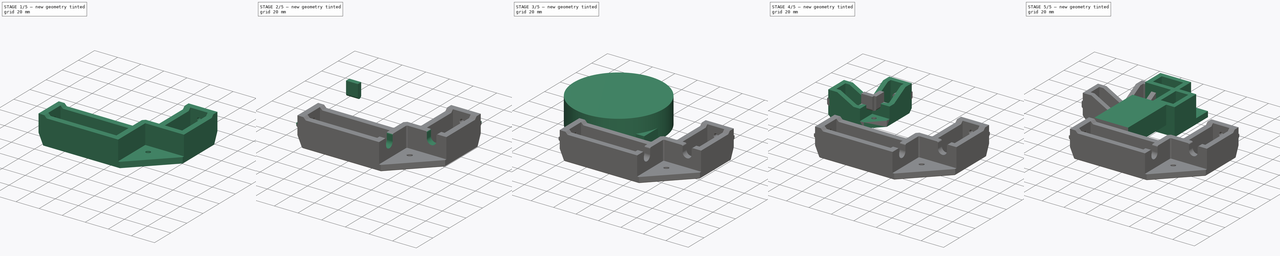
[diagram: build sequence overview — one tinted view per stage of 5, left to right]
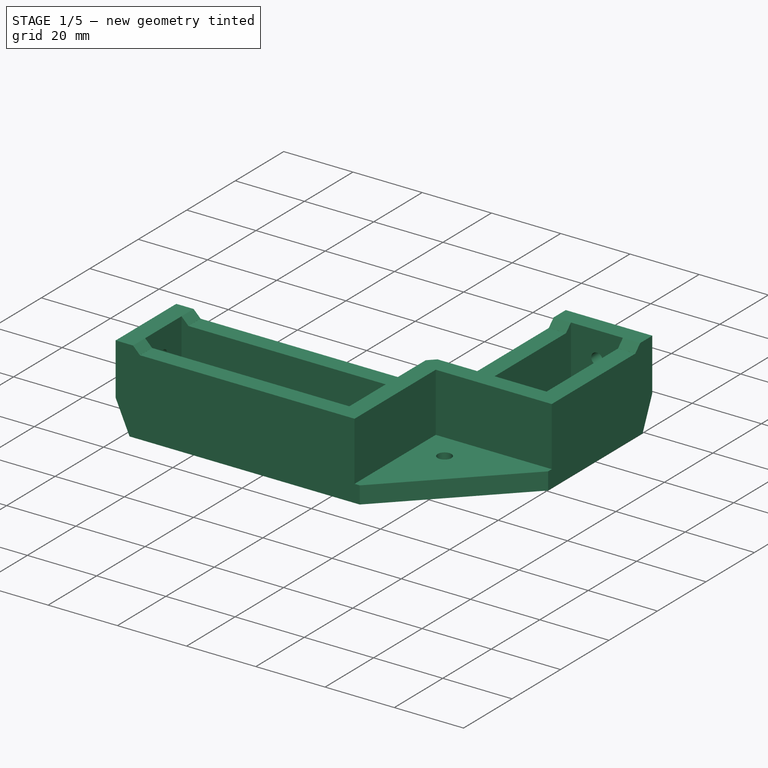
[diagram: stage 1 of 5 — iso view after this stage's code; geometry added in this stage tinted green]
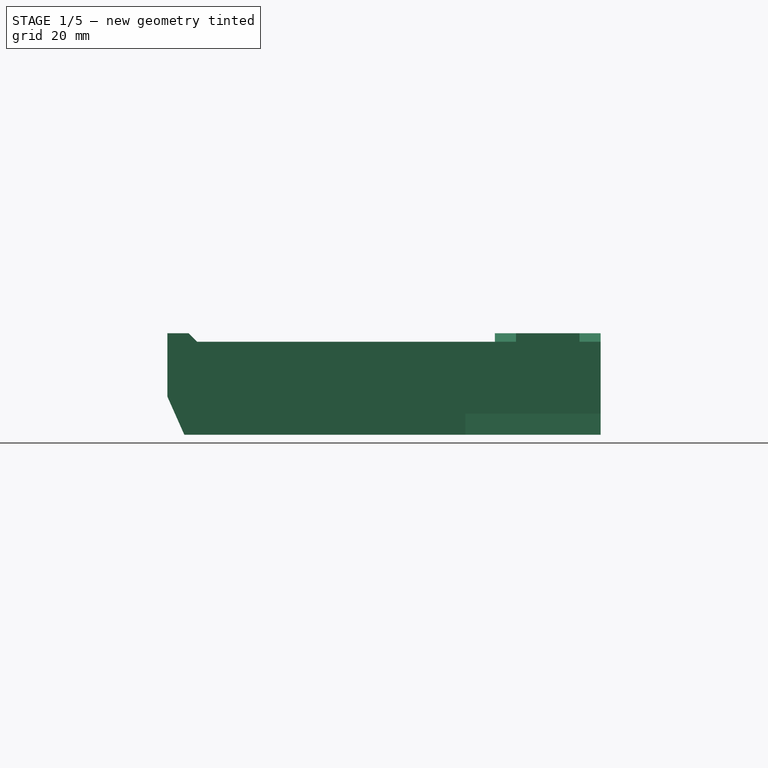
[diagram: stage 1 of 5 — front view after this stage's code; geometry added in this stage tinted green]
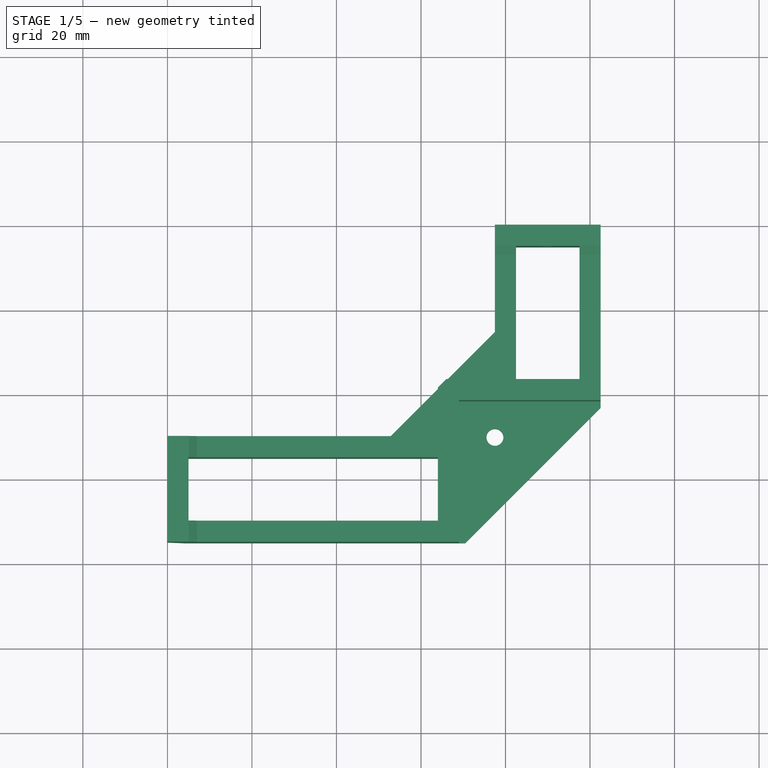
[diagram: stage 1 of 5 — top view after this stage's code; geometry added in this stage tinted green]
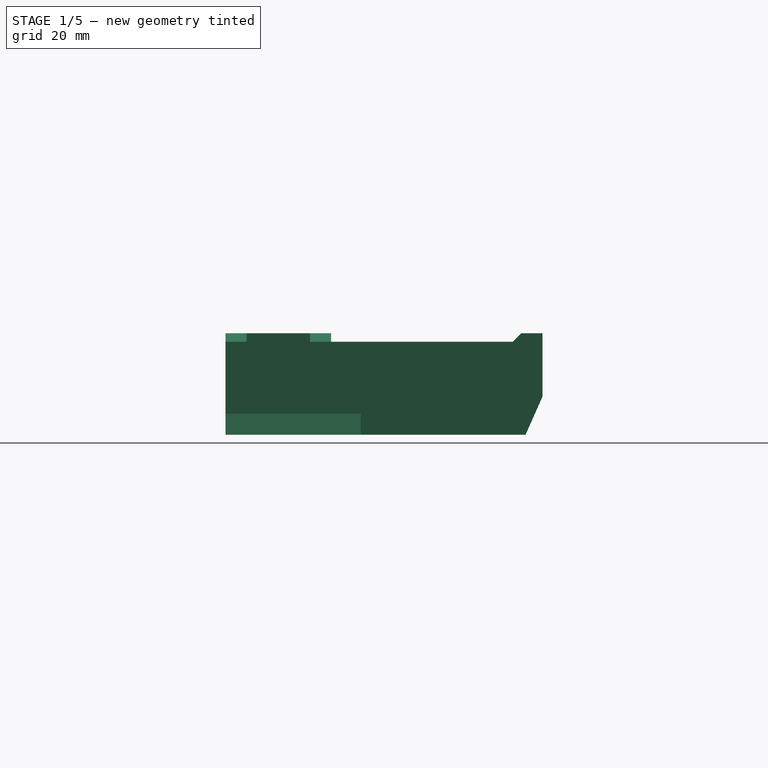
[diagram: stage 1 of 5 — right view after this stage's code; geometry added in this stage tinted green]
FCSTD DOCUMENT  (FreeCAD 0.19R24291 (Git))
Label: bed-fan-mounter
License: Other
LicenseURL: GPL3
objects: Sketcher::SketchObject×18, PartDesign::Pocket×12, Part::MultiFuse×7, Part::Feature×6, PartDesign::Pad×5, Part::Cylinder×5, Part::Cut×5, Part::Chamfer×5, PartDesign::Chamfer×5, Part::Box×4, PartDesign::Body×3, Part::MultiCommon×1, Part::Fillet×1, PartDesign::Fillet×1
note: 101 computed .brp shape members not serialized (recipe doc carries the construction recipe); baked Part::Feature solids carry a one-line shape summary decoded from their .brp

FEATURE [Part::Feature] Fillet001001  label="92mm-fan-mounter"
  shape: bbox 44.75 x 44.75 x 23 mm, 72 faces (baked)
FEATURE [Sketcher::SketchObject] Sketch005
  FullyConstrained = false
  MapMode = 5
  Support = -> [XY_Plane002]
  sketch-geometry (29):
    g0: Circle CenterX=77.5 CenterY=-50 CenterZ=0 NormalX=0 NormalY=0 NormalZ=1 AngleXU=0 Radius=2
    g1: LineSegment StartX=52.5 StartY=-50 StartZ=0 EndX=77.5 EndY=-25 EndZ=0
    g2: LineSegment StartX=77.5 StartY=-25 StartZ=0 EndX=77.5 EndY=0 EndZ=0
    g3: LineSegment StartX=52.5 StartY=-50 StartZ=0 EndX=0 EndY=-50 EndZ=0
    g4: LineSegment StartX=0 StartY=-75 StartZ=0 EndX=102.5 EndY=-75 EndZ=0
    g5: LineSegment StartX=102.5 StartY=-75 StartZ=0 EndX=102.5 EndY=0 EndZ=0
    g6: LineSegment StartX=70 StartY=-50 StartZ=0 EndX=70 EndY=-42.5 EndZ=0
    g7: LineSegment StartX=70 StartY=-42.5 StartZ=0 EndX=77.5 EndY=-42.5 EndZ=0
    g8: LineSegment StartX=0 StartY=-50 StartZ=0 EndX=0 EndY=-75 EndZ=0
    g9: LineSegment StartX=77.5 StartY=0 StartZ=0 EndX=102.5 EndY=0 EndZ=0
    g10: LineSegment StartX=77.5 StartY=-50 StartZ=0 EndX=182.5 EndY=-50 EndZ=0
    g11: LineSegment StartX=182.5 StartY=-50 StartZ=0 EndX=182.5 EndY=-155 EndZ=0
    g12: LineSegment StartX=182.5 StartY=-155 StartZ=0 EndX=77.5 EndY=-155 EndZ=0
    g13: LineSegment StartX=77.5 StartY=-155 StartZ=0 EndX=77.5 EndY=-50 EndZ=0
    g14: LineSegment StartX=70 StartY=-42.5 StartZ=0 EndX=190 EndY=-42.5 EndZ=0
    g15: LineSegment StartX=190 StartY=-42.5 StartZ=0 EndX=190 EndY=-162.5 EndZ=0
    g16: LineSegment StartX=190 StartY=-162.5 StartZ=0 EndX=70 EndY=-162.5 EndZ=0
    g17: LineSegment StartX=70 StartY=-162.5 StartZ=0 EndX=70 EndY=-42.5 EndZ=0
    g18: LineSegment StartX=77.5 StartY=-50 StartZ=0 EndX=182.5 EndY=-155 EndZ=0
    g19: LineSegment StartX=77.5 StartY=-155 StartZ=0 EndX=130 EndY=-102.5 EndZ=0
    g20: Circle CenterX=130 CenterY=-102.5 CenterZ=0 NormalX=0 NormalY=0 NormalZ=1 AngleXU=0 Radius=58.213
    g21: LineSegment StartX=5 StartY=-55 StartZ=0 EndX=64 EndY=-55 EndZ=0
    g22: LineSegment StartX=64 StartY=-55 StartZ=0 EndX=64 EndY=-70 EndZ=0
    g23: LineSegment StartX=64 StartY=-70 StartZ=0 EndX=5 EndY=-70 EndZ=0
    g24: LineSegment StartX=5 StartY=-70 StartZ=0 EndX=5 EndY=-55 EndZ=0
    g25: LineSegment StartX=82.5 StartY=-5 StartZ=0 EndX=97.5 EndY=-5 EndZ=0
    g26: LineSegment StartX=97.5 StartY=-5 StartZ=0 EndX=97.5 EndY=-36.5 EndZ=0
    g27: LineSegment StartX=97.5 StartY=-36.5 StartZ=0 EndX=82.5 EndY=-36.5 EndZ=0
    g28: LineSegment StartX=82.5 StartY=-36.5 StartZ=0 EndX=82.5 EndY=-5 EndZ=0
  constraints (83):
    c: Radius(g0) = 2
    c: DistanceX(g-1,g0) = 77.5
    c: DistanceY(g0,g-1) = 50
    c: Coincident(g2,g1)
    c: PointOnObject(g2,g-1)
    c: Vertical(g2)
    c: Coincident(g3,g1)
    c: PointOnObject(g3,g-2)
    c: Horizontal(g3)
    c: PointOnObject(g4,g-2)
    c: Horizontal(g4)
    c: Coincident(g5,g4)
    c: PointOnObject(g5,g-1)
    c: Vertical(g5)
    c: Horizontal(g1,g0)
    c: Vertical(g0,g1)
    c: Coincident(g6,g7)
    c: Vertical(g0,g7)
    c: Horizontal(g0,g6)
    c: Horizontal(g7)
    c: Vertical(g6)
    c: DistanceX(g6,g0) = 7.5
    c: DistanceY(g0,g7) = 7.5
    c: DistanceY(g0,g1) = 25
    c: DistanceX(g1,g0) = 25
    c: Coincident(g8,g3)
    c: Coincident(g8,g4)
    c: Coincident(g9,g2)
    c: Coincident(g9,g5)
    c: Coincident(g10,g11)
    c: Coincident(g11,g12)
    c: Coincident(g12,g13)
    c: Coincident(g13,g10)
    c: Horizontal(g10)
    c: Horizontal(g12)
    c: Vertical(g11)
    c: Vertical(g13)
    c: Coincident(g10,g0)
    c: Coincident(g14,g15)
    c: Coincident(g15,g16)
    c: Coincident(g16,g17)
    c: Coincident(g17,g14)
    c: Horizontal(g14)
    c: Horizontal(g16)
    c: Vertical(g15)
    c: Vertical(g17)
    c: Coincident(g14,g6)
    c: DistanceX(g14,g14) = 120
    c: DistanceX(g10,g10) = 105
    c: DistanceY(g17,g17) = 120
    c: DistanceY(g13,g13) = 105
    c: Coincident(g18,g0)
    c: Coincident(g18,g11)
    c: Coincident(g19,g12)
    c: PointOnObject(g19,g18)
    c: Perpendicular(g18,g19)
    c: Coincident(g20,g19)
    c: DistanceX(g0,g4) = 25
    c: DistanceY(g4,g0) = 25
    c: Coincident(g21,g22)
    c: Coincident(g22,g23)
    c: Coincident(g23,g24)
    c: Coincident(g24,g21)
    c: Horizontal(g21)
    c: Horizontal(g23)
    c: Vertical(g22)
    c: Vertical(g24)
    c: Coincident(g25,g26)
    c: Coincident(g26,g27)
    c: Coincident(g27,g28)
    c: Coincident(g28,g25)
    c: Horizontal(g25)
    c: Horizontal(g27)
    c: Vertical(g26)
    c: Vertical(g28)
    c: DistanceX(g3,g21) = 5
    c: DistanceY(g21,g3) = 5
    c: DistanceY(g4,g23) = 5
    c: DistanceY(g25,g2) = 5
    c: DistanceY(g0,g27) = 13.5
    c: DistanceX(g21,g0) = 13.5
    c: DistanceX(g2,g25) = 5
    c: DistanceX(g25,g5) = 5
FEATURE [PartDesign::Pad] Pad002
  Direction = (1,1,1)
  Length = 24
  Length2 = 100
  Profile = -> Sketch005
  Type = 0
FEATURE [Sketcher::SketchObject] Sketch006
  FullyConstrained = true
  MapMode = 5
  Placement = pos=(0,0,0) rot=(1,0,0;3.14159rad)
  Support = -> [Pad002]
FEATURE [Sketcher::SketchObject] Sketch007
  ExternalGeometry = -> [Pad002]
  FullyConstrained = true
  MapMode = 5
  Placement = pos=(0,0,24) rot=(0,0,1;0rad)
  Support = -> [Pad002]
  sketch-geometry (4):
    g0: LineSegment StartX=69 StartY=-75 StartZ=0 EndX=102.5 EndY=-75 EndZ=0
    g1: LineSegment StartX=102.5 StartY=-75 StartZ=0 EndX=102.5 EndY=-41.5 EndZ=0
    g2: LineSegment StartX=102.5 StartY=-41.5 StartZ=0 EndX=69 EndY=-41.5 EndZ=0
    g3: LineSegment StartX=69 StartY=-41.5 StartZ=0 EndX=69 EndY=-75 EndZ=0
  constraints (12):
    c: Coincident(g0,g1)
    c: Coincident(g1,g2)
    c: Coincident(g2,g3)
    c: Coincident(g3,g0)
    c: Horizontal(g0)
    c: Horizontal(g2)
    c: Vertical(g1)
    c: Vertical(g3)
    c: PointOnObject(g0,g-4)
    c: PointOnObject(g1,g-5)
    c: DistanceY(g-3,g2) = 8.5
    c: DistanceX(g2,g-3) = 8.5
FEATURE [PartDesign::Pocket] Pocket003
  BaseFeature = -> Pad002
  Length = 19
  Length2 = 100
  Profile = -> Sketch007
  Type = 0
FEATURE [PartDesign::Chamfer] Chamfer002004
  Angle = 45
  Base = -> Pocket003 [Edge9]
  BaseFeature = -> Pocket003
  ChamferType = 0
  FlipDirection = false
  Size = 32
  Size2 = 1
  SupportTransform = false
FEATURE [Sketcher::SketchObject] Sketch008
  ExternalGeometry = -> [Chamfer002004]
  FullyConstrained = true
  MapMode = 5
  Placement = pos=(0,0,24) rot=(0,0,1;0rad)
  Support = -> [Chamfer002004]
  sketch-geometry (4):
    g0: LineSegment StartX=7 StartY=-7 StartZ=0 EndX=102.5 EndY=-7 EndZ=0
    g1: LineSegment StartX=102.5 StartY=-7 StartZ=0 EndX=102.5 EndY=-75 EndZ=0
    g2: LineSegment StartX=102.5 StartY=-75 StartZ=0 EndX=7 EndY=-75 EndZ=0
    g3: LineSegment StartX=7 StartY=-75 StartZ=0 EndX=7 EndY=-7 EndZ=0
  constraints (12):
    c: Coincident(g0,g1)
    c: Coincident(g1,g2)
    c: Coincident(g2,g3)
    c: Coincident(g3,g0)
    c: Horizontal(g0)
    c: Horizontal(g2)
    c: Vertical(g1)
    c: Vertical(g3)
    c: DistanceX(g-3,g0) = 2
    c: DistanceY(g0,g-4) = 2
    c: DistanceX(g-4,g0) = 5
    c: DistanceY(g2,g-3) = 5
FEATURE [PartDesign::Pocket] Pocket004
  BaseFeature = -> Chamfer002004
  Length = 2
  Length2 = 100
  Profile = -> Sketch008
  Type = 0
FEATURE [PartDesign::Chamfer] Chamfer002005
  Angle = 45
  Base = -> Pocket004 [Edge33,Edge39,Edge82,Edge73]
  BaseFeature = -> Pocket004
  ChamferType = 0
  FlipDirection = false
  Size = 1.99
  Size2 = 1
  SupportTransform = false
FEATURE [Sketcher::SketchObject] Sketch009
  FullyConstrained = true
  MapMode = 5
  Placement = pos=(0,-75,0) rot=(1,0,0;1.5708rad)
  Support = -> [Chamfer002005]
  sketch-geometry (3):
    g0: LineSegment StartX=0 StartY=9 StartZ=0 EndX=4 EndY=0 EndZ=0
    g1: LineSegment StartX=4 StartY=0 StartZ=0 EndX=0 EndY=0 EndZ=0
    g2: LineSegment StartX=0 StartY=0 StartZ=0 EndX=0 EndY=9 EndZ=0
  constraints (8):
    c: PointOnObject(g0,g-2)
    c: PointOnObject(g0,g-1)
    c: Coincident(g0,g1)
    c: Coincident(g1,g-1)
    c: Coincident(g1,g2)
    c: Coincident(g2,g0)
    c: DistanceY(g2,g2) = 9
    c: DistanceX(g1,g1) = 4
FEATURE [PartDesign::Pocket] Pocket005
  BaseFeature = -> Chamfer002005
  Length = 5
  Length2 = 100
  Profile = -> Sketch009
  Type = 1
FEATURE [Sketcher::SketchObject] Sketch010
  FullyConstrained = true
  MapMode = 5
  Placement = pos=(102.5,0,0) rot=(0.57735,0.57735,0.57735;2.0944rad)
  Support = -> [Pocket005]
  sketch-geometry (3):
    g0: LineSegment StartX=0 StartY=9 StartZ=0 EndX=-4 EndY=0 EndZ=0
    g1: LineSegment StartX=-4 StartY=0 StartZ=0 EndX=0 EndY=0 EndZ=0
    g2: LineSegment StartX=0 StartY=0 StartZ=0 EndX=0 EndY=9 EndZ=0
  constraints (8):
    c: PointOnObject(g0,g-2)
    c: PointOnObject(g0,g-1)
    c: Coincident(g0,g1)
    c: Coincident(g1,g-1)
    c: Coincident(g1,g2)
    c: Coincident(g2,g0)
    c: DistanceY(g2,g2) = 9
    c: DistanceX(g1,g1) = 4
FEATURE [PartDesign::Pocket] Pocket006
  BaseFeature = -> Pocket005
  Length = 5
  Length2 = 100
  Profile = -> Sketch010
  Type = 1
FEATURE [Sketcher::SketchObject] Sketch011
  ExternalGeometry = -> [Pocket006]
  FullyConstrained = true
  MapMode = 5
  Placement = pos=(0,0,22) rot=(0,0,1;0rad)
  Support = -> [Pocket006]
  sketch-geometry (6):
    g0: LineSegment StartX=64 StartY=-38.5 StartZ=0 EndX=64 EndY=-50 EndZ=0
    g1: LineSegment StartX=64 StartY=-50 StartZ=0 EndX=52.5 EndY=-50 EndZ=0
    g2: LineSegment StartX=52.5 StartY=-50 StartZ=0 EndX=64 EndY=-38.5 EndZ=0
    g3: LineSegment StartX=77.5 StartY=-25 StartZ=0 EndX=77.5 EndY=-36.5 EndZ=0
    g4: LineSegment StartX=77.5 StartY=-36.5 StartZ=0 EndX=66 EndY=-36.5 EndZ=0
    g5: LineSegment StartX=66 StartY=-36.5 StartZ=0 EndX=77.5 EndY=-25 EndZ=0
  constraints (16):
    c: PointOnObject(g0,g-3)
    c: Vertical(g0)
    c: Coincident(g0,g1)
    c: Coincident(g1,g-3)
    c: Horizontal(g1)
    c: Coincident(g1,g2)
    c: Coincident(g2,g0)
    c: Coincident(g-3,g3)
    c: Vertical(g3)
    c: Vertical(g0,g-5)
    c: Coincident(g3,g4)
    c: PointOnObject(g4,g-3)
    c: Horizontal(g4)
    c: Coincident(g4,g5)
    c: Coincident(g5,g3)
    c: Horizontal(g3,g-4)
FEATURE [PartDesign::Pocket] Pocket007
  BaseFeature = -> Pocket006
  Length = 19
  Length2 = 100
  Profile = -> Sketch011
  Type = 0
FEATURE [Sketcher::SketchObject] Sketch012
  ExternalGeometry = -> [Pocket007]
  FullyConstrained = true
  MapMode = 5
  Placement = pos=(0,0,0) rot=(0.57735,-0.57735,-0.57735;2.0944rad)
  Support = -> [Pocket007]
  sketch-geometry (1):
    g0: Circle CenterX=62.5 CenterY=16.5 CenterZ=0 NormalX=0 NormalY=0 NormalZ=1 AngleXU=0 Radius=1.65
  constraints (4):
    c: DistanceY(g0,g-3) = 7.5
    c: DistanceX(g-3,g0) = 12.5
    c: DistanceX(g-3,g-3) = 25
    c: Radius(g0) = 1.65
FEATURE [PartDesign::Pocket] Pocket008
  BaseFeature = -> Pocket007
  Length = 5
  Length2 = 100
  Profile = -> Sketch012
  Type = 0
FEATURE [Sketcher::SketchObject] Sketch013
  ExternalGeometry = -> [Pocket008]
  FullyConstrained = true
  MapMode = 5
  Placement = pos=(0,0,0) rot=(0,0.707107,0.707107;3.14159rad)
  Support = -> [Pocket008]
  sketch-geometry (1):
    g0: Circle CenterX=-90 CenterY=16.5 CenterZ=0 NormalX=0 NormalY=0 NormalZ=1 AngleXU=0 Radius=1.65
  constraints (3):
    c: Radius(g0) = 1.65
    c: DistanceY(g0,g-3) = 7.5
    c: DistanceX(g-3,g0) = 12.5
FEATURE [PartDesign::Pocket] Pocket009
  BaseFeature = -> Pocket008
  Length = 5
  Length2 = 100
  Profile = -> Sketch013
  Type = 0
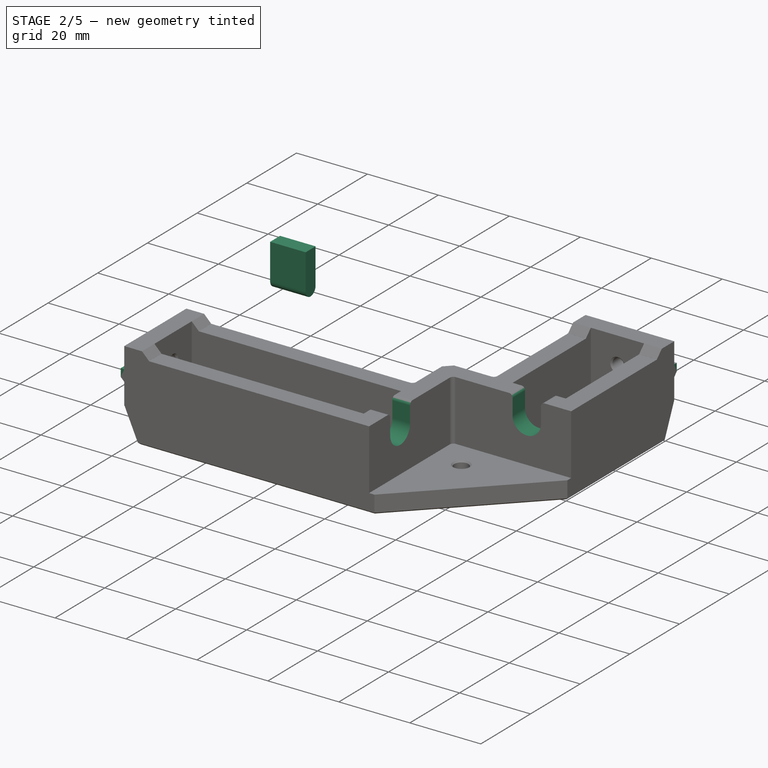
[diagram: stage 2 of 5 — iso view after this stage's code; geometry added in this stage tinted green]
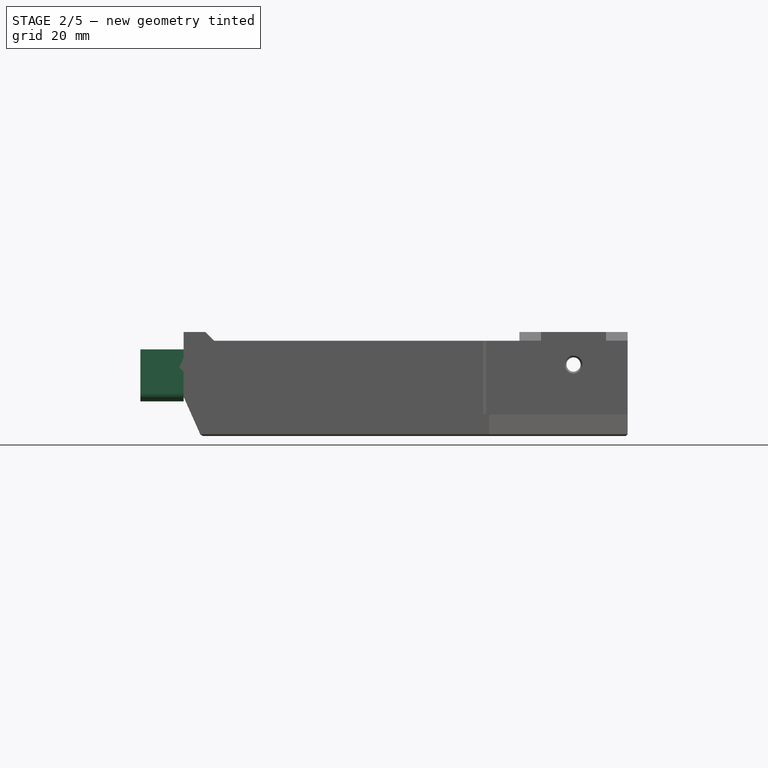
[diagram: stage 2 of 5 — front view after this stage's code; geometry added in this stage tinted green]
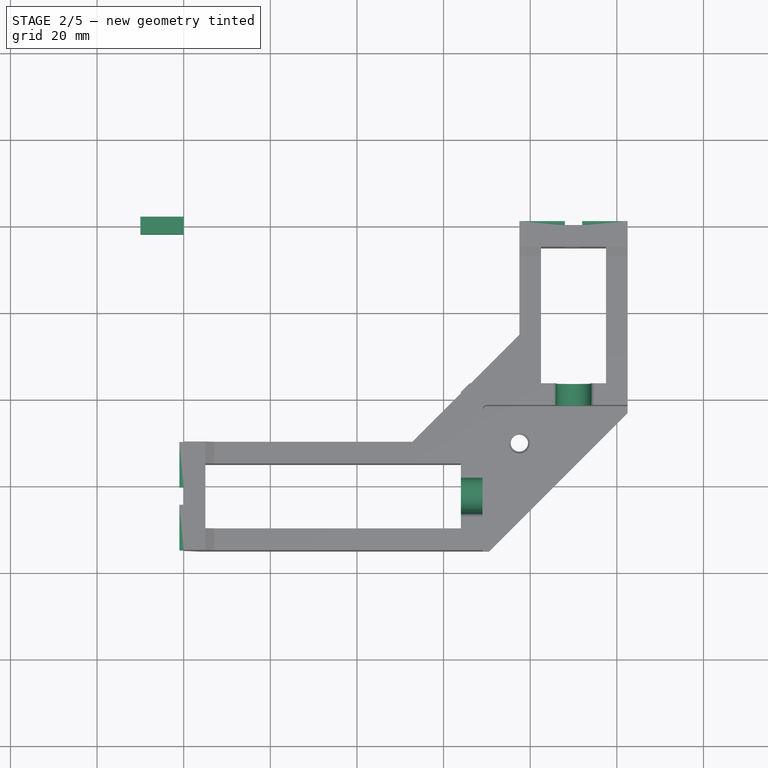
[diagram: stage 2 of 5 — top view after this stage's code; geometry added in this stage tinted green]
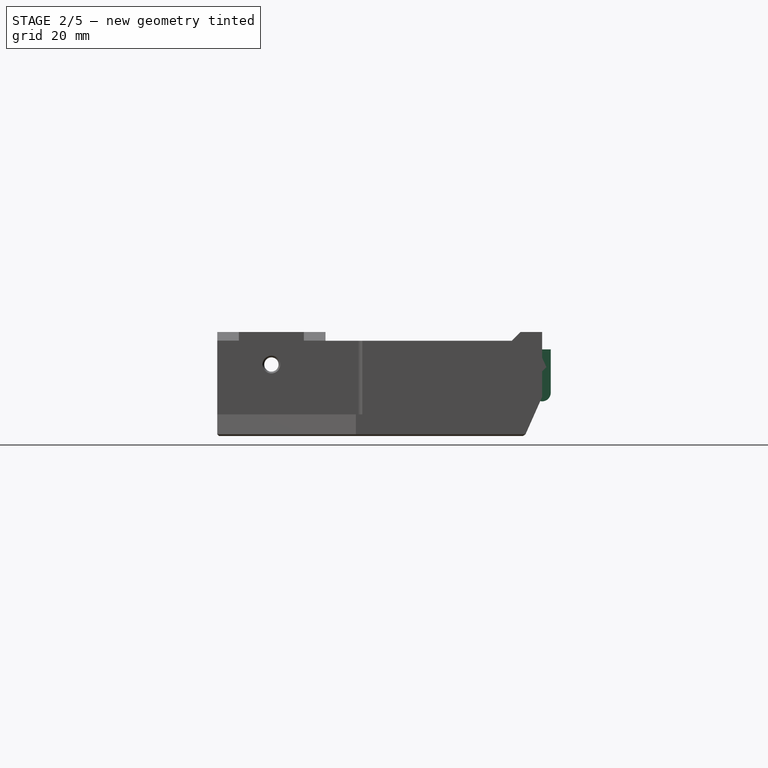
[diagram: stage 2 of 5 — right view after this stage's code; geometry added in this stage tinted green]
FEATURE [Part::Cylinder] Cylinder004
  Angle = 360
  AttacherType = Attacher::AttachEngine3D
  Height = 10
  Placement = pos=(0,0,10) rot=(0,-1,0;1.5708rad)
  Radius = 2
FEATURE [Part::Box] Box003  label="Cube003"
  AttacherType = Attacher::AttachEngine3D
  Height = 10
  Length = 10
  Placement = pos=(-10,-2,10) rot=(0,0,1;0rad)
  Width = 4
FEATURE [Sketcher::SketchObject] Sketch014
  ExternalGeometry = -> [Pocket009]
  FullyConstrained = true
  MapMode = 5
  Placement = pos=(0,0,0) rot=(0,0.707107,0.707107;3.14159rad)
  Support = -> [Pocket009]
  sketch-geometry (8):
    g0: LineSegment StartX=-102.5 StartY=18.1 StartZ=0 EndX=-92 EndY=18.1 EndZ=0
    g1: LineSegment StartX=-92 StartY=18.1 StartZ=0 EndX=-92 EndY=14.9 EndZ=0
    g2: LineSegment StartX=-92 StartY=14.9 StartZ=0 EndX=-102.5 EndY=14.9 EndZ=0
    g3: LineSegment StartX=-102.5 StartY=14.9 StartZ=0 EndX=-102.5 EndY=18.1 EndZ=0
    g4: LineSegment StartX=-77.5 StartY=18.1 StartZ=0 EndX=-88 EndY=18.1 EndZ=0
    g5: LineSegment StartX=-88 StartY=18.1 StartZ=0 EndX=-88 EndY=14.9 EndZ=0
    g6: LineSegment StartX=-88 StartY=14.9 StartZ=0 EndX=-77.5 EndY=14.9 EndZ=0
    g7: LineSegment StartX=-77.5 StartY=14.9 StartZ=0 EndX=-77.5 EndY=18.1 EndZ=0
  constraints (24):
    c: Coincident(g0,g1)
    c: Coincident(g1,g2)
    c: Coincident(g2,g3)
    c: Coincident(g3,g0)
    c: Horizontal(g0)
    c: Horizontal(g2)
    c: Vertical(g1)
    c: Vertical(g3)
    c: PointOnObject(g0,g-3)
    c: Coincident(g4,g5)
    c: Coincident(g5,g6)
    c: Coincident(g6,g7)
    c: Coincident(g7,g4)
    c: Horizontal(g4)
    c: Horizontal(g6)
    c: Vertical(g5)
    c: Vertical(g7)
    c: PointOnObject(g4,g-5)
    c: Horizontal(g0,g4)
    c: Horizontal(g1,g5)
    c: DistanceX(g0,g-6) = 2
    c: DistanceX(g-6,g4) = 2
    c: DistanceY(g5,g5) = 3.2
    c: DistanceY(g-6,g4) = 1.6
FEATURE [PartDesign::Pad] Pad003
  BaseFeature = -> Pocket009
  Direction = (1,1,1)
  Length = 1
  Length2 = 100
  Profile = -> Sketch014
  Type = 0
FEATURE [Sketcher::SketchObject] Sketch015
  ExternalGeometry = -> [Pad003]
  FullyConstrained = true
  MapMode = 5
  Placement = pos=(0,0,0) rot=(0.57735,-0.57735,-0.57735;2.0944rad)
  Support = -> [Pad003]
  sketch-geometry (8):
    g0: LineSegment StartX=50 StartY=18.1 StartZ=0 EndX=60.5 EndY=18.1 EndZ=0
    g1: LineSegment StartX=60.5 StartY=18.1 StartZ=0 EndX=60.5 EndY=14.9 EndZ=0
    g2: LineSegment StartX=60.5 StartY=14.9 StartZ=0 EndX=50 EndY=14.9 EndZ=0
    g3: LineSegment StartX=50 StartY=14.9 StartZ=0 EndX=50 EndY=18.1 EndZ=0
    g4: LineSegment StartX=64.5 StartY=18.1 StartZ=0 EndX=75 EndY=18.1 EndZ=0
    g5: LineSegment StartX=75 StartY=18.1 StartZ=0 EndX=75 EndY=14.9 EndZ=0
    g6: LineSegment StartX=75 StartY=14.9 StartZ=0 EndX=64.5 EndY=14.9 EndZ=0
    g7: LineSegment StartX=64.5 StartY=14.9 StartZ=0 EndX=64.5 EndY=18.1 EndZ=0
  constraints (24):
    c: Coincident(g0,g1)
    c: Coincident(g1,g2)
    c: Coincident(g2,g3)
    c: Coincident(g3,g0)
    c: Horizontal(g0)
    c: Horizontal(g2)
    c: Vertical(g1)
    c: Vertical(g3)
    c: PointOnObject(g0,g-3)
    c: Coincident(g4,g5)
    c: Coincident(g5,g6)
    c: Coincident(g6,g7)
    c: Coincident(g7,g4)
    c: Horizontal(g4)
    c: Horizontal(g6)
    c: Vertical(g5)
    c: Vertical(g7)
    c: PointOnObject(g5,g-5)
    c: Horizontal(g0,g4)
    c: Horizontal(g6,g1)
    c: DistanceX(g0,g-6) = 2
    c: DistanceX(g-6,g4) = 2
    c: DistanceY(g7,g7) = 3.2
    c: DistanceY(g-6,g4) = 1.6
FEATURE [PartDesign::Pad] Pad004
  BaseFeature = -> Pad003
  Direction = (1,1,1)
  Length = 1
  Length2 = 100
  Profile = -> Sketch015
  Type = 0
FEATURE [PartDesign::Chamfer] Chamfer002006
  Angle = 45
  Base = -> Pad004 [Edge104,Edge94,Edge168,Edge176]
  BaseFeature = -> Pad004
  ChamferType = 0
  FlipDirection = false
  Size = 0.99
  Size2 = 1
  SupportTransform = false
FEATURE [Sketcher::SketchObject] Sketch016
  ExternalGeometry = -> [Chamfer002006]
  FullyConstrained = true
  MapMode = 5
  Placement = pos=(69,0,0) rot=(0.57735,0.57735,0.57735;2.0944rad)
  Support = -> [Chamfer002006]
  sketch-geometry (4):
    g0: ArcOfCircle CenterX=-62.5 CenterY=16.5 CenterZ=0 NormalX=0 NormalY=0 NormalZ=1 AngleXU=0 Radius=4 StartAngle=3.14159 EndAngle=6.28319
    g1: LineSegment StartX=-66.5 StartY=16.5 StartZ=0 EndX=-66.5 EndY=24 EndZ=0
    g2: LineSegment StartX=-66.5 StartY=24 StartZ=0 EndX=-58.5 EndY=24 EndZ=0
    g3: LineSegment StartX=-58.5 StartY=24 StartZ=0 EndX=-58.5 EndY=16.5 EndZ=0
  constraints (11):
    c: Coincident(g0,g-3)
    c: Horizontal(g0,g0)
    c: Horizontal(g0,g0)
    c: Tangent(g0,g1) = 1.5708
    c: Coincident(g1,g2)
    c: PointOnObject(g2,g-4)
    c: Horizontal(g2)
    c: Coincident(g2,g3)
    c: Coincident(g3,g0)
    c: Vertical(g3)
    c: Radius(g0) = 4
FEATURE [PartDesign::Pocket] Pocket010
  BaseFeature = -> Chamfer002006
  Length = 5
  Length2 = 100
  Profile = -> Sketch016
  Type = 0
FEATURE [Sketcher::SketchObject] Sketch017
  ExternalGeometry = -> [Pocket010]
  FullyConstrained = true
  MapMode = 5
  Placement = pos=(0,-41.5,0) rot=(1,0,0;1.5708rad)
  Support = -> [Pocket010]
  sketch-geometry (4):
    g0: ArcOfCircle CenterX=90 CenterY=16.5 CenterZ=0 NormalX=0 NormalY=0 NormalZ=1 AngleXU=0 Radius=4 StartAngle=3.14159 EndAngle=6.28319
    g1: LineSegment StartX=86 StartY=16.5 StartZ=0 EndX=86 EndY=24 EndZ=0
    g2: LineSegment StartX=86 StartY=24 StartZ=0 EndX=94 EndY=24 EndZ=0
    g3: LineSegment StartX=94 StartY=24 StartZ=0 EndX=94 EndY=16.5 EndZ=0
  constraints (11):
    c: Coincident(g0,g-3)
    c: Horizontal(g0,g0)
    c: Horizontal(g0,g0)
    c: Tangent(g0,g1) = 1.5708
    c: Coincident(g1,g2)
    c: PointOnObject(g2,g-4)
    c: Horizontal(g2)
    c: Coincident(g2,g3)
    c: Coincident(g3,g0)
    c: Vertical(g3)
    c: Radius(g0) = 4
FEATURE [PartDesign::Pocket] Pocket011
  BaseFeature = -> Pocket010
  Length = 5
  Length2 = 100
  Profile = -> Sketch017
  Type = 0
FEATURE [PartDesign::Chamfer] Chamfer002007
  Angle = 45
  Base = -> Pocket011 [Face12,Edge65]
  BaseFeature = -> Pocket011
  ChamferType = 0
  FlipDirection = false
  Size = 0.4
  Size2 = 1
  SupportTransform = false
FEATURE [PartDesign::Fillet] Fillet001002
  Base = -> Chamfer002007 [Edge54,Edge130,Edge131,Edge195,Edge47,Edge157,Edge222]
  BaseFeature = -> Chamfer002007
  Radius = 1
  SupportTransform = false
FEATURE [PartDesign::Chamfer] Chamfer002008
  Angle = 45
  Base = -> Fillet001002 [Edge234,Edge256]
  BaseFeature = -> Fillet001002
  ChamferType = 0
  FlipDirection = false
  Size = 0.4
  Size2 = 1
  SupportTransform = false
FEATURE [PartDesign::Body] Body002006
  Group = -> [Sketch005,Pad002,Sketch006,Sketch007,Pocket003,Chamfer002004,Sketch008,Pocket004,Chamfer002005,Sketch009,Pocket005,Sketch010,Pocket006,Sketch011,Pocket007,Sketch012,Pocket008,Sketch013,Pocket009,Sketch014,Pad003,Sketch015,Pad004,Chamfer002006,Sketch016,Pocket010,Sketch017,Pocket011,Chamfer002007,Fillet001002,Chamfer002008]
  Origin = -> Origin002
  Tip = -> Chamfer002008
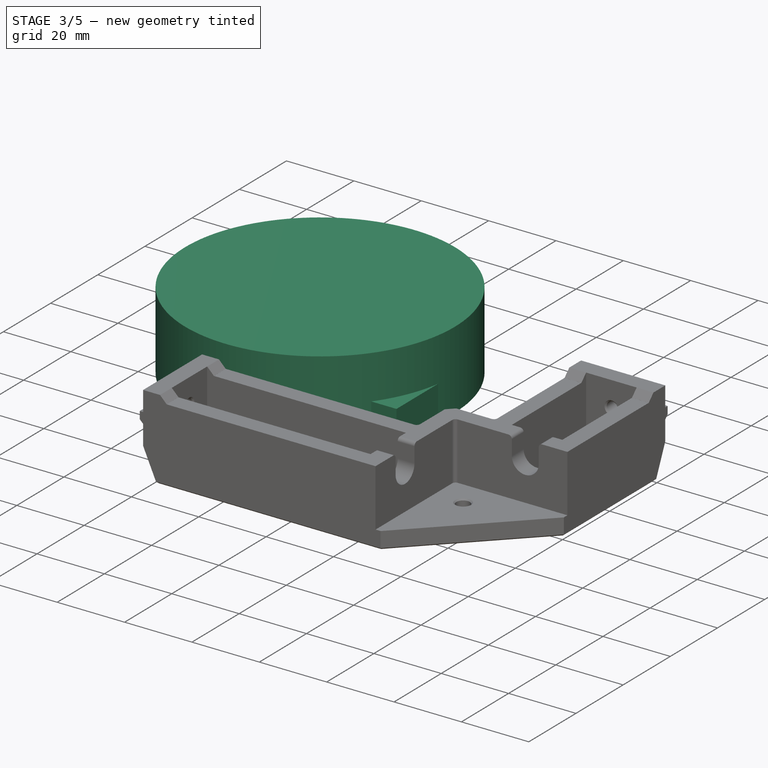
[diagram: stage 3 of 5 — iso view after this stage's code; geometry added in this stage tinted green]
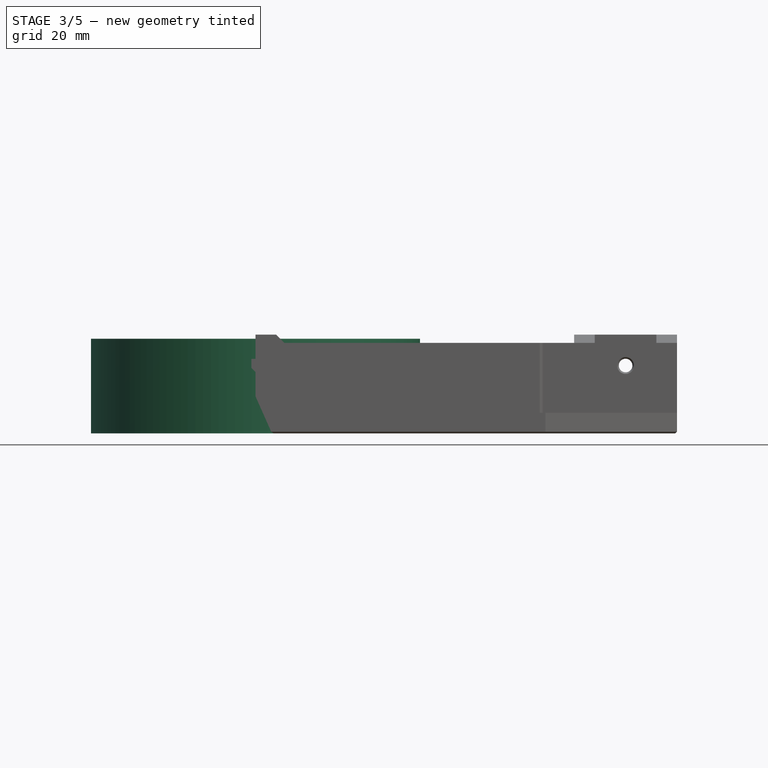
[diagram: stage 3 of 5 — front view after this stage's code; geometry added in this stage tinted green]
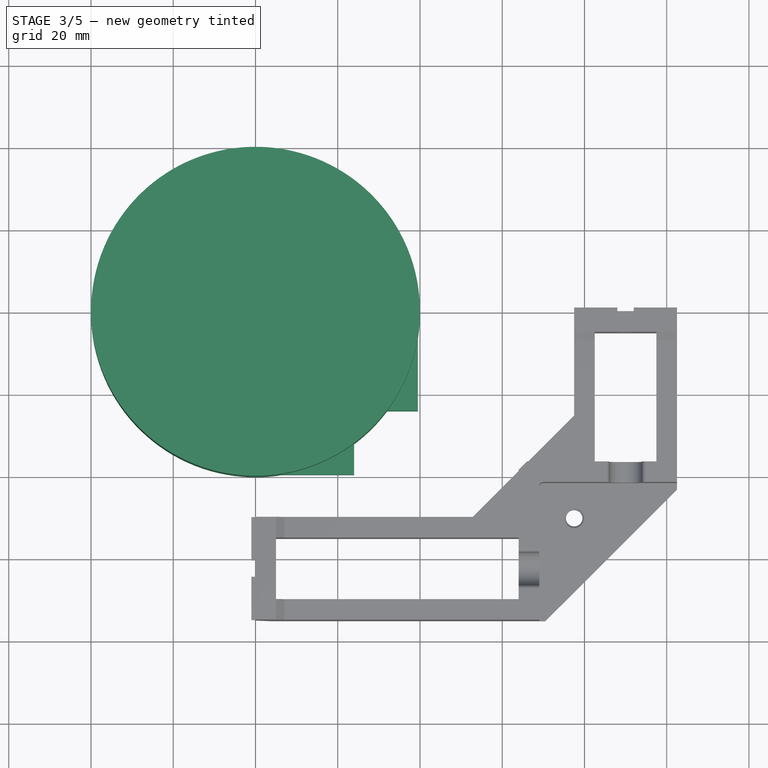
[diagram: stage 3 of 5 — top view after this stage's code; geometry added in this stage tinted green]
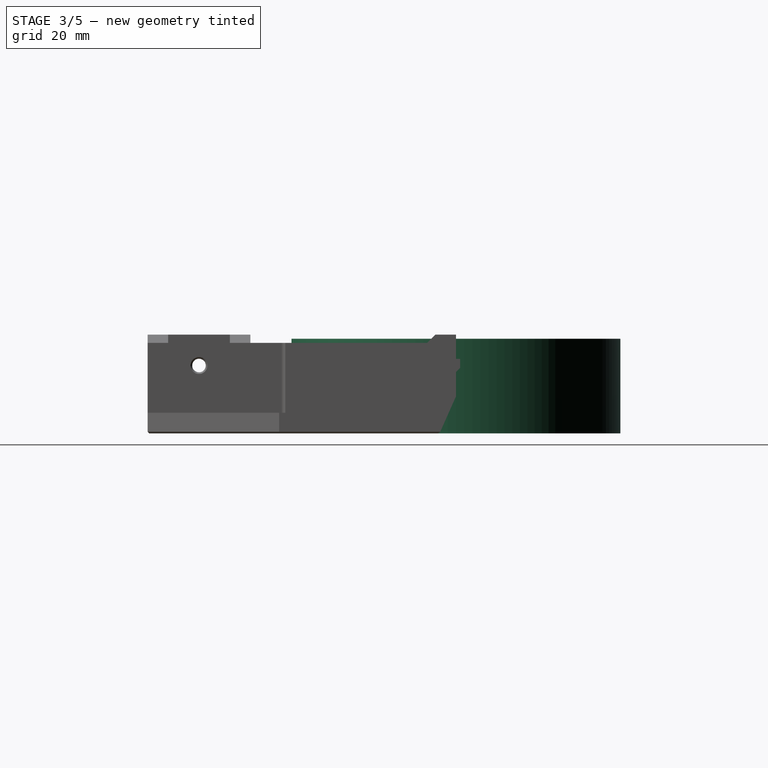
[diagram: stage 3 of 5 — right view after this stage's code; geometry added in this stage tinted green]
FEATURE [Part::Box] Box  label="Cube"
  AttacherType = Attacher::AttachEngine3D
  Height = 10
  Length = 11.5
  Placement = pos=(4.25,-28,0) rot=(0,0,-1;1.5708rad)
  Width = 19.75
FEATURE [Part::Box] Box001  label="Cube001"
  AttacherType = Attacher::AttachEngine3D
  Height = 10
  Length = 11.5
  Placement = pos=(28,-24,0) rot=(0,0,1;0rad)
  Width = 19.75
FEATURE [Part::Cylinder] Cylinder001
  Angle = 360
  AttacherType = Attacher::AttachEngine3D
  Height = 23
  Radius = 40
FEATURE [Part::Box] Box002  label="Cube002"
  AttacherType = Attacher::AttachEngine3D
  Height = 5.8
  Length = 2
  Placement = pos=(0,-10,7.1) rot=(0,0,1;0rad)
  Width = 20
FEATURE [Part::Chamfer] Chamfer002
  Base = -> Box002
  Edges = 1 edges r=1: [Edge4]
  Placement = pos=(-34.75,0,0) rot=(0,0,1;0rad)
FEATURE [Part::Feature] Chamfer002001
  Placement = pos=(8e-15,34.75,0) rot=(0,0,-1;1.5708rad)
  shape: bbox 20 x 2 x 5.8 mm, 7 faces (baked)
FEATURE [Part::MultiFuse] Fusion002
  Shapes = -> [Chamfer002001,Chamfer002]
FEATURE [Part::Cylinder] Cylinder002
  Angle = 360
  AttacherType = Attacher::AttachEngine3D
  Height = 10
  Placement = pos=(-26,0,10) rot=(0,-1,0;1.5708rad)
  Radius = 1.65
FEATURE [Part::Cylinder] Cylinder003
  Angle = 360
  AttacherType = Attacher::AttachEngine3D
  Height = 10
  Placement = pos=(0,26,10) rot=(-1,0,0;1.5708rad)
  Radius = 1.65
FEATURE [Part::MultiFuse] Fusion004
  Shapes = -> [Cylinder002,Cylinder003]
FEATURE [Part::MultiFuse] Fusion005
  Shapes = -> [Box003,Cylinder004]
FEATURE [Part::Feature] Fusion005001
  Placement = pos=(0,0,0) rot=(0,0,-1;1.5708rad)
  shape: bbox 4 x 10 x 12 mm, 10 faces (baked)
FEATURE [Part::MultiFuse] Fusion005002
  Shapes = -> [Fusion005001,Fusion005]
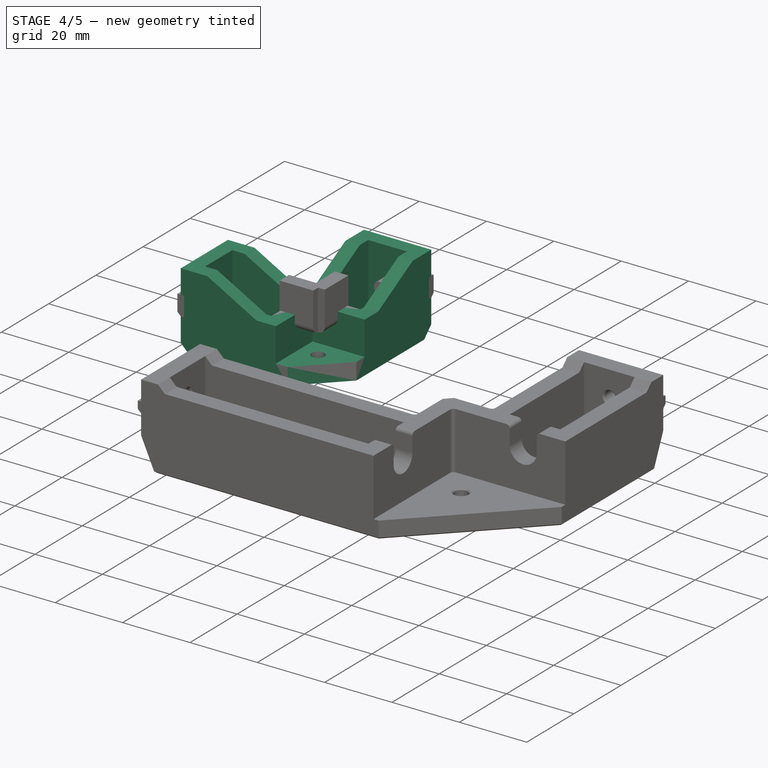
[diagram: stage 4 of 5 — iso view after this stage's code; geometry added in this stage tinted green]
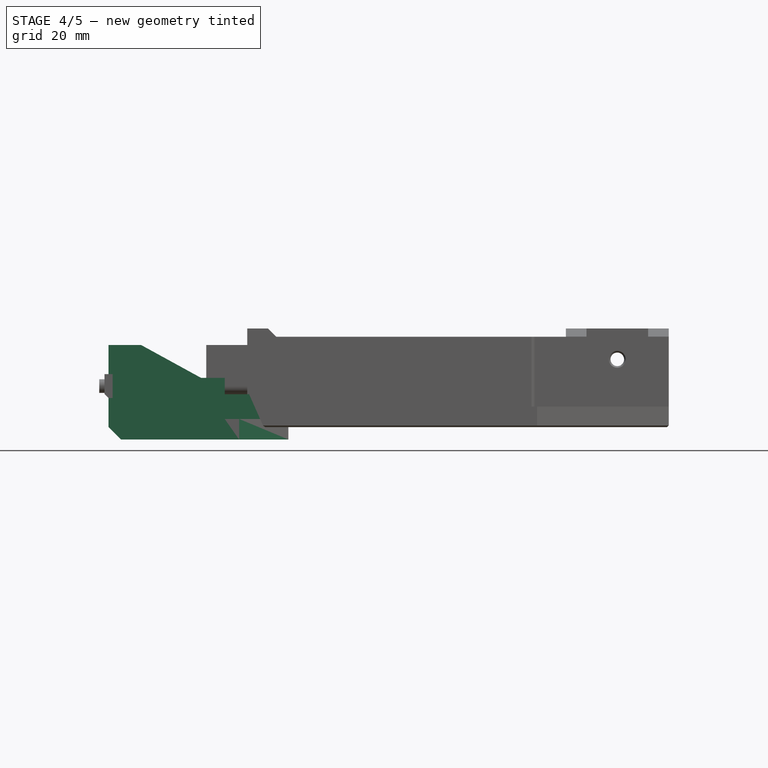
[diagram: stage 4 of 5 — front view after this stage's code; geometry added in this stage tinted green]
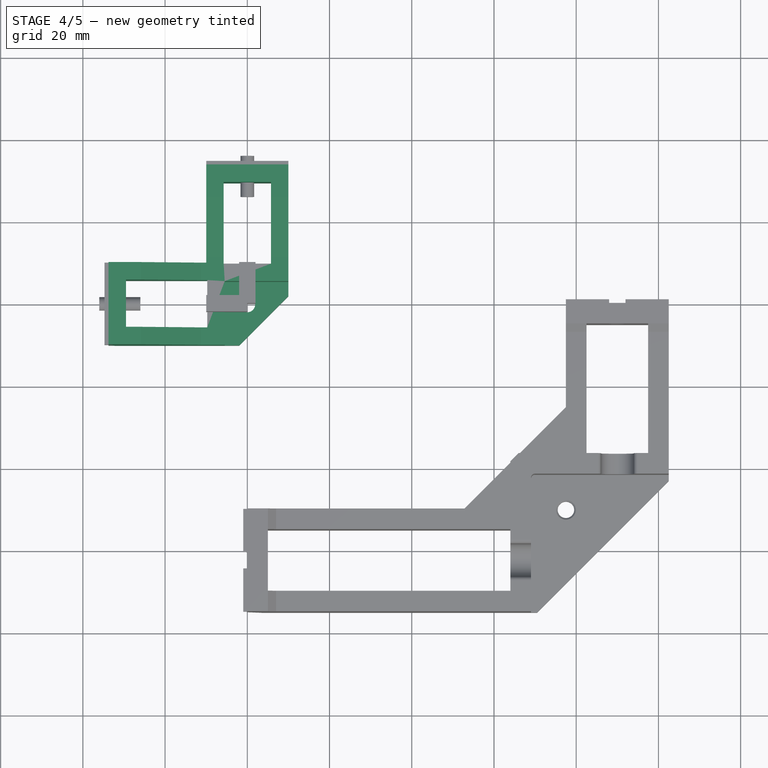
[diagram: stage 4 of 5 — top view after this stage's code; geometry added in this stage tinted green]
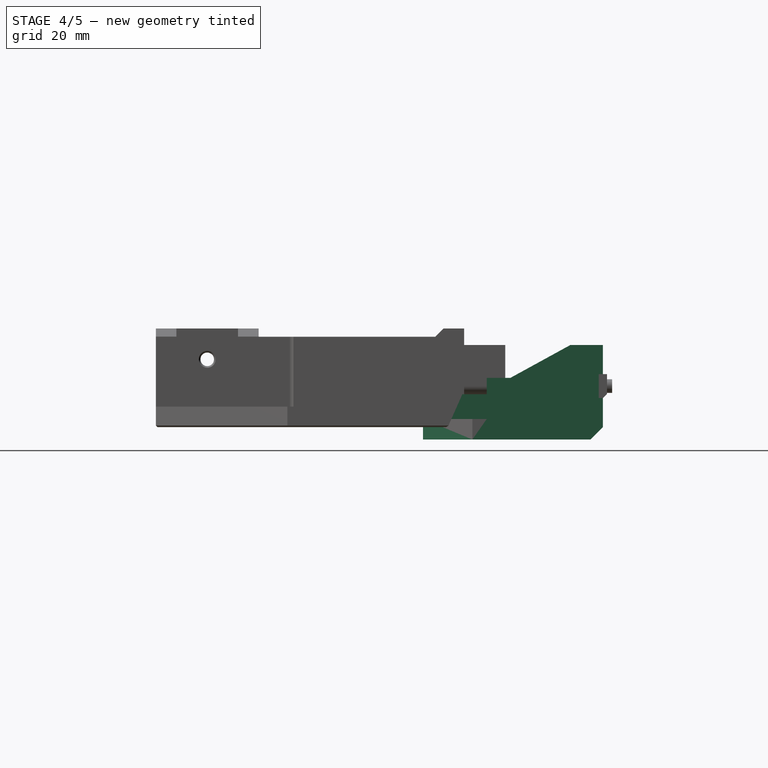
[diagram: stage 4 of 5 — right view after this stage's code; geometry added in this stage tinted green]
FEATURE [PartDesign::Body] Body002
  Group = -> [Sketch004,Pad001]
  Origin = -> Origin001
  Tip = -> Pad001
FEATURE [Part::Feature] Body002004
  Placement = pos=(-0.75,-23.75,0) rot=(0,0,1;0rad)
  shape: bbox 31 x 50 x 17 mm, 5 faces (baked)
FEATURE [Part::Feature] Body002005
  Placement = pos=(73.75,0.75,0) rot=(0,0,-1;1.5708rad)
  shape: bbox 50 x 31 x 17 mm, 5 faces (baked)
FEATURE [Part::MultiFuse] Fusion
  Shapes = -> [Body002004,Body002005]
FEATURE [Part::Cylinder] Cylinder
  Angle = 360
  AttacherType = Attacher::AttachEngine3D
  Height = 15
  Placement = pos=(33.75,-33.75,0) rot=(0,0,1;0rad)
  Radius = 18
FEATURE [Part::Cut] Cut
  Base = -> Fusion
  Tool = -> Cylinder
FEATURE [Part::Cut] Cut001
  Base = -> Body002003
  Tool = -> Cut
FEATURE [Part::Chamfer] Chamfer
  Base = -> Cut001
  Edges = 1 edges r=12: [Edge41]
FEATURE [Part::MultiFuse] Fusion001
  Shapes = -> [Box,Box001]
FEATURE [Part::Cut] Cut002
  Base = -> Chamfer
  Placement = pos=(-33.75,33.75,0) rot=(0,0,1;0rad)
  Tool = -> Fusion001
FEATURE [Part::MultiCommon] Common
  Shapes = -> [Cut002,Cylinder001]
FEATURE [Part::Chamfer] Chamfer001
  Base = -> Common
  Edges = 2 edges r=3: [Edge3,Edge6]
  Placement = pos=(0,0,-3) rot=(0,0,1;0rad)
FEATURE [Part::MultiFuse] Fusion003
  Shapes = -> [Chamfer001,Fusion002]
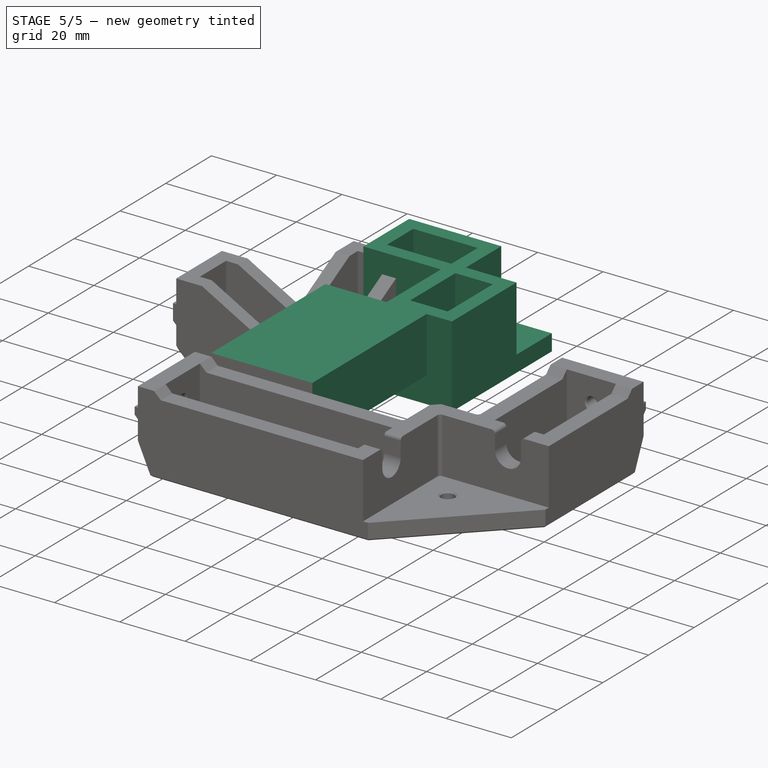
[diagram: stage 5 of 5 — iso view after this stage's code; geometry added in this stage tinted green]
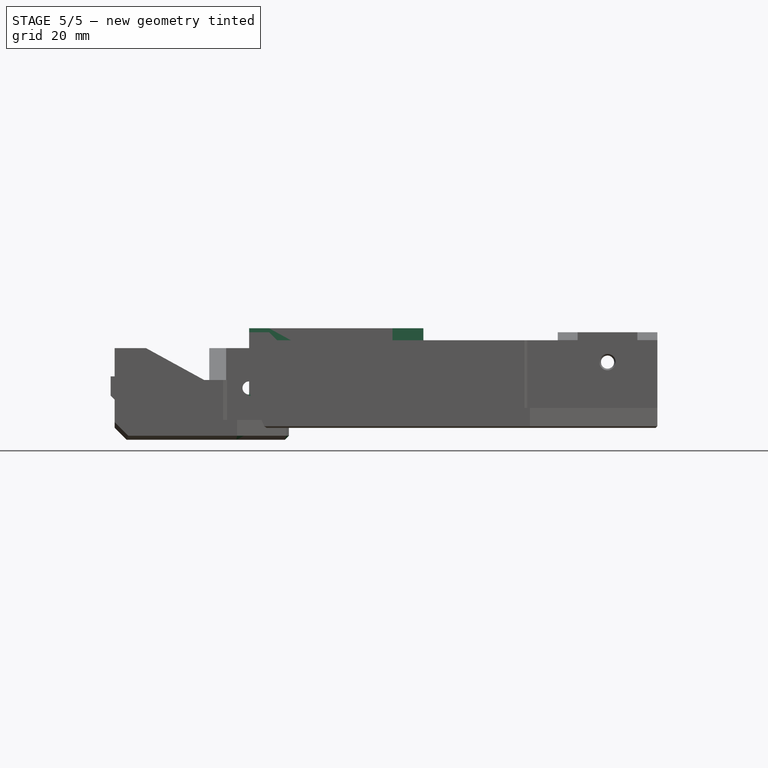
[diagram: stage 5 of 5 — front view after this stage's code; geometry added in this stage tinted green]
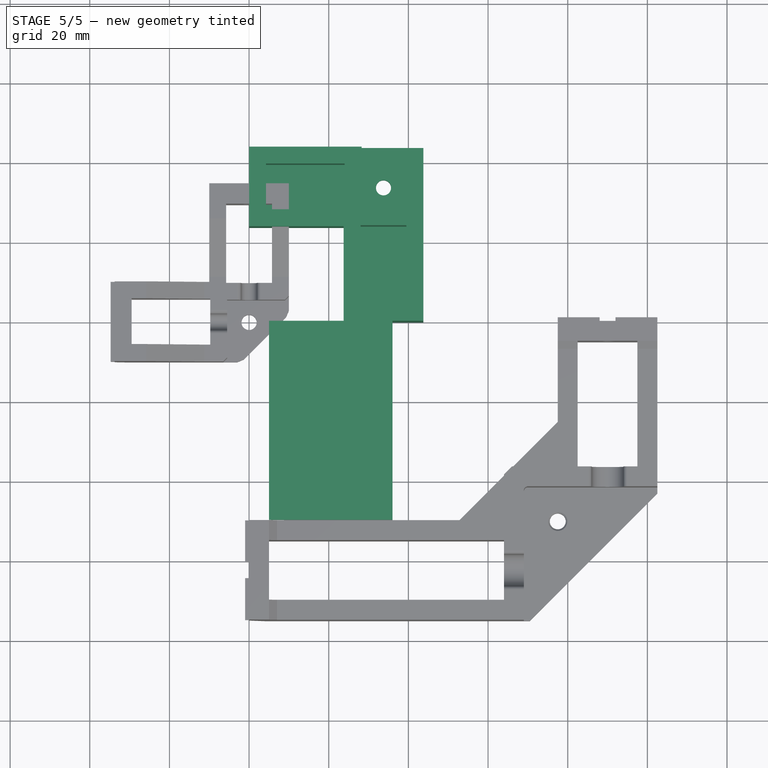
[diagram: stage 5 of 5 — top view after this stage's code; geometry added in this stage tinted green]
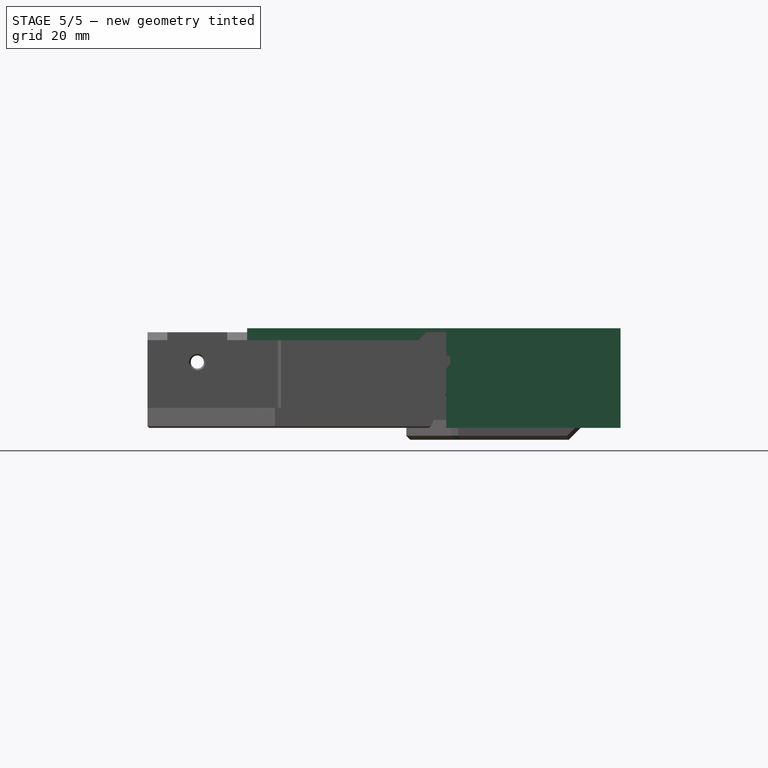
[diagram: stage 5 of 5 — right view after this stage's code; geometry added in this stage tinted green]
FEATURE [Sketcher::SketchObject] Sketch
  FullyConstrained = true
  MapMode = 5
  Support = -> [XY_Plane]
  sketch-geometry (6):
    g0: LineSegment StartX=0 StartY=23.75 StartZ=0 EndX=23.75 EndY=23.75 EndZ=0
    g1: LineSegment StartX=23.75 StartY=23.75 StartZ=0 EndX=23.75 EndY=0 EndZ=0
    g2: LineSegment StartX=23.75 StartY=0 StartZ=0 EndX=43.75 EndY=0 EndZ=0
    g3: LineSegment StartX=43.75 StartY=0 StartZ=0 EndX=43.75 EndY=43.75 EndZ=0
    g4: LineSegment StartX=43.75 StartY=43.75 StartZ=0 EndX=0 EndY=43.75 EndZ=0
    g5: LineSegment StartX=0 StartY=43.75 StartZ=0 EndX=0 EndY=23.75 EndZ=0
  constraints (19):
    c: PointOnObject(g0,g-2)
    c: Horizontal(g0)
    c: Coincident(g0,g1)
    c: PointOnObject(g1,g-1)
    c: Vertical(g1)
    c: Coincident(g1,g2)
    c: Horizontal(g2)
    c: Coincident(g2,g3)
    c: Vertical(g3)
    c: Coincident(g3,g4)
    c: PointOnObject(g4,g-2)
    c: Horizontal(g4)
    c: Coincident(g4,g5)
    c: PointOnObject(g5,g0)
    c: Vertical(g5)
    c: DistanceX(g0,g0) = 23.75
    c: DistanceX(g4,g4) = 43.75
    c: DistanceY(g-1,g0) = 23.75
    c: DistanceY(g2,g3) = 43.75
FEATURE [PartDesign::Pad] Pad
  Direction = (1,1,1)
  Length = 25
  Length2 = 100
  Profile = -> Sketch
  Type = 0
FEATURE [Sketcher::SketchObject] Sketch001
  FullyConstrained = true
  MapMode = 5
  Placement = pos=(0,0,25) rot=(0,0,1;0rad)
  Support = -> [Pad]
  sketch-geometry (1):
    g0: Circle CenterX=33.75 CenterY=33.75 CenterZ=0 NormalX=0 NormalY=0 NormalZ=1 AngleXU=0 Radius=1.9
  constraints (3):
    c: Radius(g0) = 1.9
    c: DistanceY(g-1,g0) = 33.75
    c: DistanceX(g-1,g0) = 33.75
FEATURE [PartDesign::Pocket] Pocket
  BaseFeature = -> Pad
  Length = 0
  Length2 = 100
  Profile = -> Sketch001
  Type = 3
  UpToFace = -> Pad [Face7]
FEATURE [Sketcher::SketchObject] Sketch002
  FullyConstrained = true
  MapMode = 5
  Placement = pos=(0,0,25) rot=(0,0,1;0rad)
  Support = -> [Pocket]
  sketch-geometry (5):
    g0: GeomPoint X=33.75 Y=33.75 Z=0
    g1: LineSegment StartX=28.25 StartY=48.25 StartZ=0 EndX=48.25 EndY=48.25 EndZ=0
    g2: LineSegment StartX=48.25 StartY=48.25 StartZ=0 EndX=48.25 EndY=28.25 EndZ=0
    g3: LineSegment StartX=48.25 StartY=28.25 StartZ=0 EndX=28.25 EndY=28.25 EndZ=0
    g4: LineSegment StartX=28.25 StartY=28.25 StartZ=0 EndX=28.25 EndY=48.25 EndZ=0
  constraints (14):
    c: DistanceY(g-1,g0) = 33.75
    c: DistanceX(g-1,g0) = 33.75
    c: Coincident(g1,g2)
    c: Coincident(g2,g3)
    c: Coincident(g3,g4)
    c: Coincident(g4,g1)
    c: Horizontal(g1)
    c: Horizontal(g3)
    c: Vertical(g2)
    c: Vertical(g4)
    c: DistanceY(g3,g0) = 5.5
    c: DistanceX(g3,g0) = 5.5
    c: DistanceX(g1,g1) = 20
    c: DistanceY(g2,g2) = 20
FEATURE [PartDesign::Pocket] Pocket001
  BaseFeature = -> Pocket
  Length = 20
  Length2 = 100
  Profile = -> Sketch002
  Type = 0
FEATURE [Sketcher::SketchObject] Sketch003
  FullyConstrained = true
  MapMode = 5
  Placement = pos=(0,0,25) rot=(0,0,1;0rad)
  Support = -> [Pocket001]
  sketch-geometry (8):
    g0: LineSegment StartX=4.25 StartY=39.5 StartZ=0 EndX=24 EndY=39.5 EndZ=0
    g1: LineSegment StartX=24 StartY=39.5 StartZ=0 EndX=24 EndY=28 EndZ=0
    g2: LineSegment StartX=24 StartY=28 StartZ=0 EndX=4.25 EndY=28 EndZ=0
    g3: LineSegment StartX=4.25 StartY=28 StartZ=0 EndX=4.25 EndY=39.5 EndZ=0
    g4: LineSegment StartX=28 StartY=24 StartZ=0 EndX=39.5 EndY=24 EndZ=0
    g5: LineSegment StartX=39.5 StartY=24 StartZ=0 EndX=39.5 EndY=4.25 EndZ=0
    g6: LineSegment StartX=39.5 StartY=4.25 StartZ=0 EndX=28 EndY=4.25 EndZ=0
    g7: LineSegment StartX=28 StartY=4.25 StartZ=0 EndX=28 EndY=24 EndZ=0
  constraints (24):
    c: Coincident(g0,g1)
    c: Coincident(g1,g2)
    c: Coincident(g2,g3)
    c: Coincident(g3,g0)
    c: Horizontal(g0)
    c: Horizontal(g2)
    c: Vertical(g1)
    c: Vertical(g3)
    c: Coincident(g4,g5)
    c: Coincident(g5,g6)
    c: Coincident(g6,g7)
    c: Coincident(g7,g4)
    c: Horizontal(g4)
    c: Horizontal(g6)
    c: Vertical(g5)
    c: Vertical(g7)
    c: DistanceY(g-1,g2) = 28
    c: DistanceY(g3,g3) = 11.5
    c: DistanceX(g-1,g6) = 28
    c: DistanceX(g6,g6) = 11.5
    c: DistanceX(g-1,g1) = 24
    c: DistanceY(g-1,g4) = 24
    c: DistanceX(g-1,g2) = 4.25
    c: DistanceY(g-1,g6) = 4.25
FEATURE [PartDesign::Pocket] Pocket002
  BaseFeature = -> Pocket001
  Length = 20
  Length2 = 100
  Profile = -> Sketch003
  Type = 0
FEATURE [PartDesign::Body] Body
  Group = -> [Sketch,Pad,Sketch001,Pocket,Sketch002,Pocket001,Sketch003,Pocket002]
  Origin = -> Origin
  Placement = pos=(0,0,0) rot=(0,0,-1;1.5708rad)
  Tip = -> Pocket002
FEATURE [Sketcher::SketchObject] Sketch004
  FullyConstrained = false
  MapMode = 5
  Placement = pos=(0,0,0) rot=(1,0,0;1.5708rad)
  Support = -> [XZ_Plane001]
  sketch-geometry (3):
    g0: LineSegment StartX=36 StartY=8 StartZ=0 EndX=5 EndY=25 EndZ=0
    g1: LineSegment StartX=5 StartY=25 StartZ=0 EndX=36 EndY=25 EndZ=0
    g2: LineSegment StartX=36 StartY=25 StartZ=0 EndX=36 EndY=8 EndZ=0
  constraints (4):
    c: Coincident(g0,g1)
    c: Horizontal(g1)
    c: Coincident(g1,g2)
    c: Vertical(g2)
FEATURE [Part::Feature] Body002003
  Placement = pos=(0,0,0) rot=(0,0,-1;1.5708rad)
  shape: bbox 43.75 x 43.75 x 25 mm, 22 faces (baked)
FEATURE [PartDesign::Pad] Pad001
  Direction = (1,1,1)
  Length = 50
  Length2 = 100
  Placement = pos=(0,0,0) rot=(1,0,0;1.5708rad)
  Profile = -> Sketch004
  Type = 0
FEATURE [Part::Cut] Cut003
  Base = -> Fusion003
  Tool = -> Fusion004
FEATURE [Part::Chamfer] Chamfer002002
  Base = -> Cut003
  Edges = 4 edges r=1: [Edge26,Edge28,Edge51,Edge53]
FEATURE [Part::Chamfer] Chamfer002003
  Base = -> Chamfer002002
  Edges = 17 edges r=1: [Edge1,Edge3,Edge4,Edge6,Edge7,Edge8,Edge9,Edge10,Edge11,Edge12,Edge14,Edge16,Edge17,Edge27,Edge34,Edge49,Edge58]
FEATURE [Part::Cut] Cut004
  Base = -> Chamfer002003
  Tool = -> Fusion005002
FEATURE [Part::Fillet] Fillet
  Base = -> Cut004
  Edges = 4 edges r=1: [Edge158,Edge164,Edge184,Edge189]
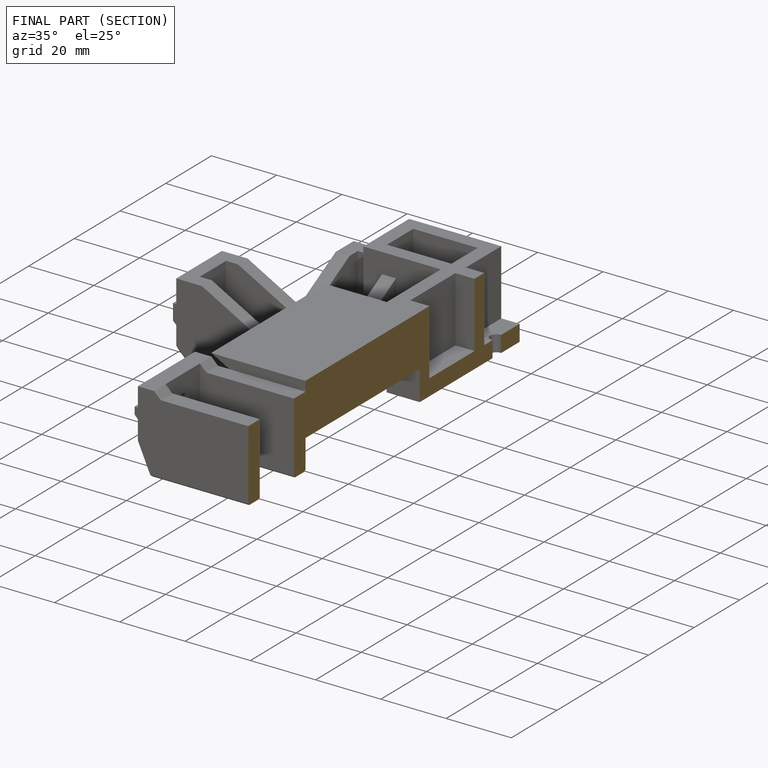
[diagram: finished part — half-section view (interior)]
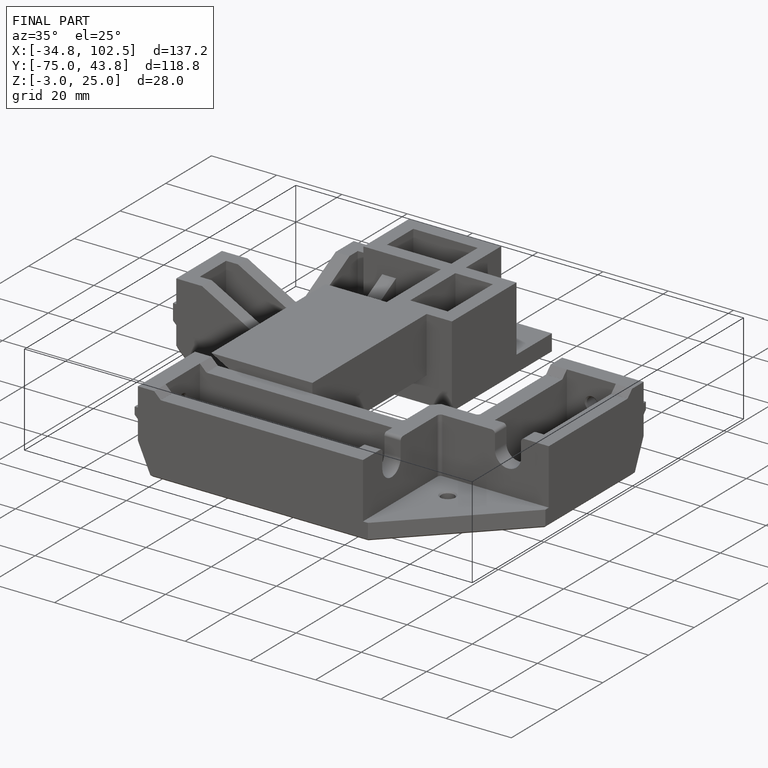
[diagram: finished part — iso view with bounding-box wireframe]
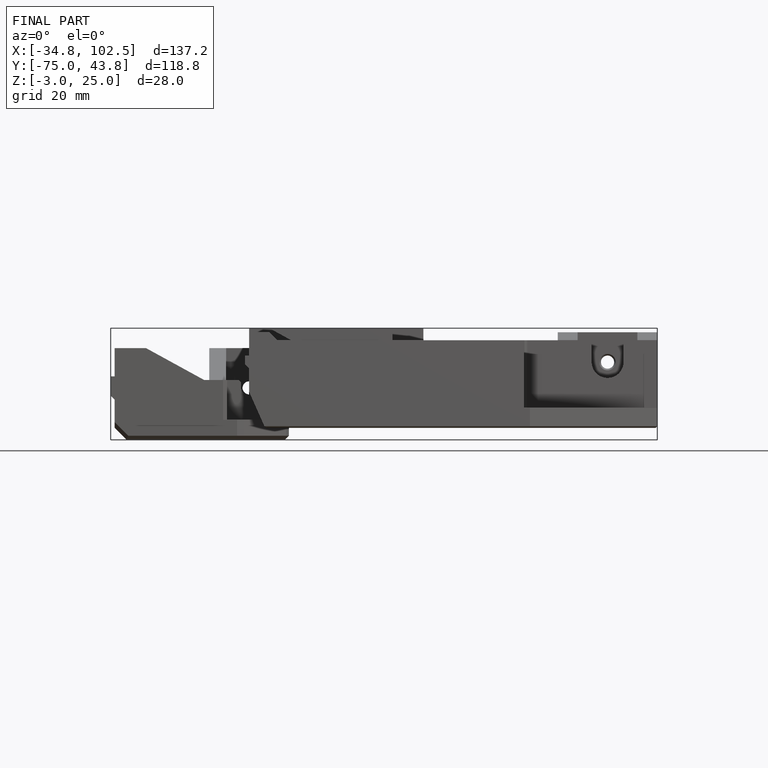
[diagram: finished part — front view with bounding-box wireframe]
